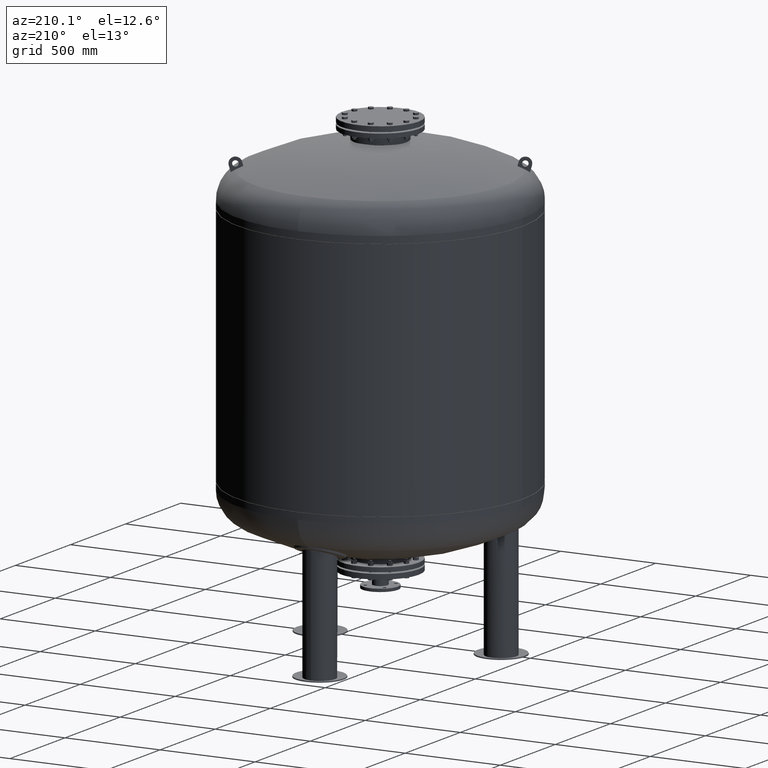
[diagram: clean part render]
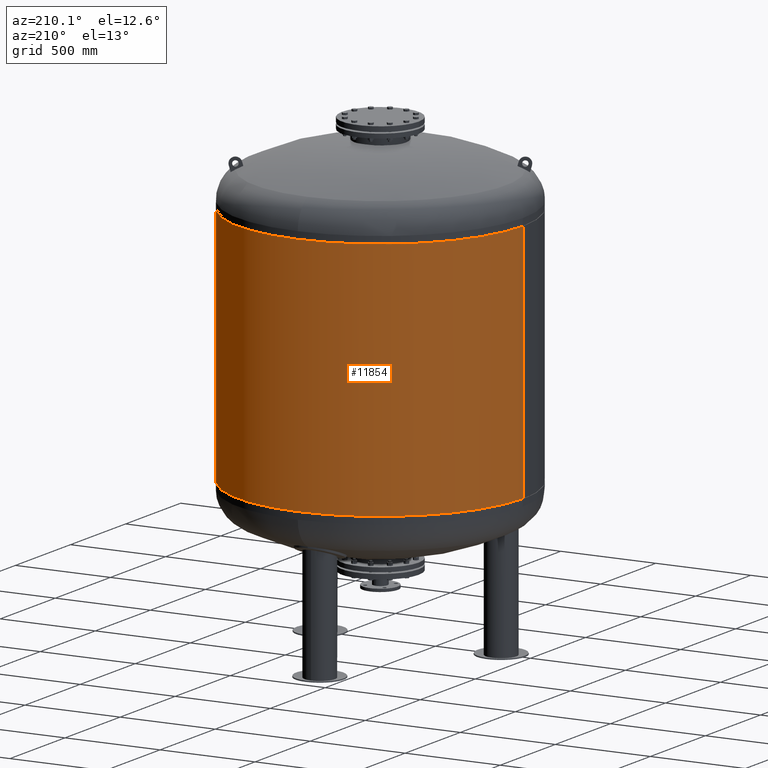
[diagram: same view with one face highlighted and labeled with its STEP entity id]
A machine part, auxiliary view. The second image highlights one B-rep face of the part: STEP entity #11854.
In plain terms, the highlighted cylindrical surface (partial cylindrical patch) has radius 750 mm, axis along (0, 0, 1).
Its self-contained STEP definition (entity closure, byte-faithful):
#11644=CARTESIAN_POINT('',(750.000000000000570,0.0,2093.0));
#11645=VERTEX_POINT('',#11644);
#11646=CARTESIAN_POINT('',(749.999999999999890,0.0,822.999999999999770));
#11647=VERTEX_POINT('',#11646);
#11648=CARTESIAN_POINT('',(750.000000000000570,0.0,2093.0));
#11649=DIRECTION('',(0.0,0.0,-1.0));
#11650=VECTOR('',#11649,1270.000000000000200);
#11651=LINE('',#11648,#11650);
#11652=EDGE_CURVE('',#11645,#11647,#11651,.T.);
#11654=CARTESIAN_POINT('',(-750.000000000000450,-9.184548E-014,2093.0));
#11655=VERTEX_POINT('',#11654);
#11663=CARTESIAN_POINT('',(-749.999999999999890,-9.184548E-014,822.999999999999770));
#11664=VERTEX_POINT('',#11663);
#11665=CARTESIAN_POINT('',(-750.000000000000450,-9.184548E-014,2093.0));
#11666=DIRECTION('',(0.0,0.0,-1.0));
#11667=VECTOR('',#11666,1270.000000000000200);
#11668=LINE('',#11665,#11667);
#11669=EDGE_CURVE('',#11655,#11664,#11668,.T.);
#11779=CARTESIAN_POINT('',(-1.660786E-014,0.0,822.999999999999770));
#11780=DIRECTION('',(0.0,0.0,1.0));
#11781=DIRECTION('',(1.0,0.0,0.0));
#11782=AXIS2_PLACEMENT_3D('',#11779,#11780,#11781);
#11783=CIRCLE('',#11782,749.999999999999890);
#11784=EDGE_CURVE('',#11647,#11664,#11783,.T.);
#11794=CARTESIAN_POINT('',(1.598721E-014,0.0,2093.0));
#11795=DIRECTION('',(0.0,0.0,1.0));
#11796=DIRECTION('',(1.0,0.0,0.0));
#11797=AXIS2_PLACEMENT_3D('',#11794,#11795,#11796);
#11798=CIRCLE('',#11797,750.000000000000570);
#11799=EDGE_CURVE('',#11645,#11655,#11798,.T.);
#11843=CARTESIAN_POINT('',(9.041626E-015,0.0,1782.0));
#11844=DIRECTION('',(2.670074E-017,0.0,1.0));
#11845=DIRECTION('',(1.0,0.0,0.0));
#11846=AXIS2_PLACEMENT_3D('',#11843,#11844,#11845);
#11847=CYLINDRICAL_SURFACE('',#11846,750.000000000000450);
#11848=ORIENTED_EDGE('',*,*,#11652,.T.);
#11849=ORIENTED_EDGE('',*,*,#11784,.T.);
#11850=ORIENTED_EDGE('',*,*,#11669,.F.);
#11851=ORIENTED_EDGE('',*,*,#11799,.F.);
#11852=EDGE_LOOP('',(#11848,#11849,#11850,#11851));
#11853=FACE_OUTER_BOUND('',#11852,.T.);
#11854=ADVANCED_FACE('',(#11853),#11847,.T.);